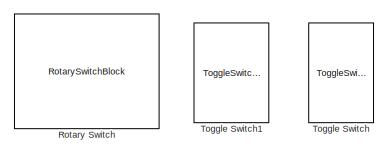
[diagram: root canvas - part 1/3, top right region]
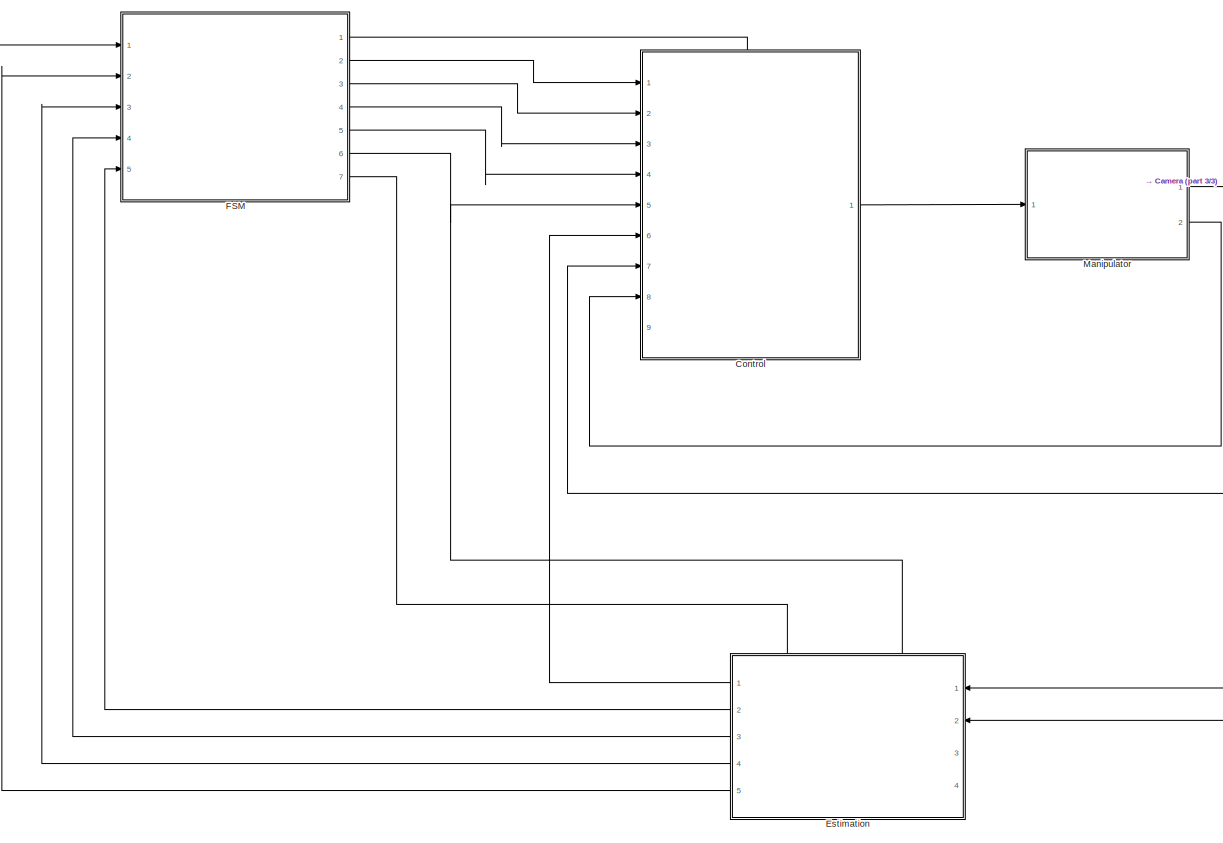
[diagram: root canvas - part 2/3, center side, full height]
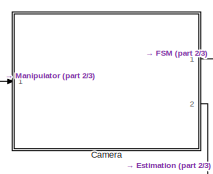
[diagram: root canvas - part 3/3, middle right region]
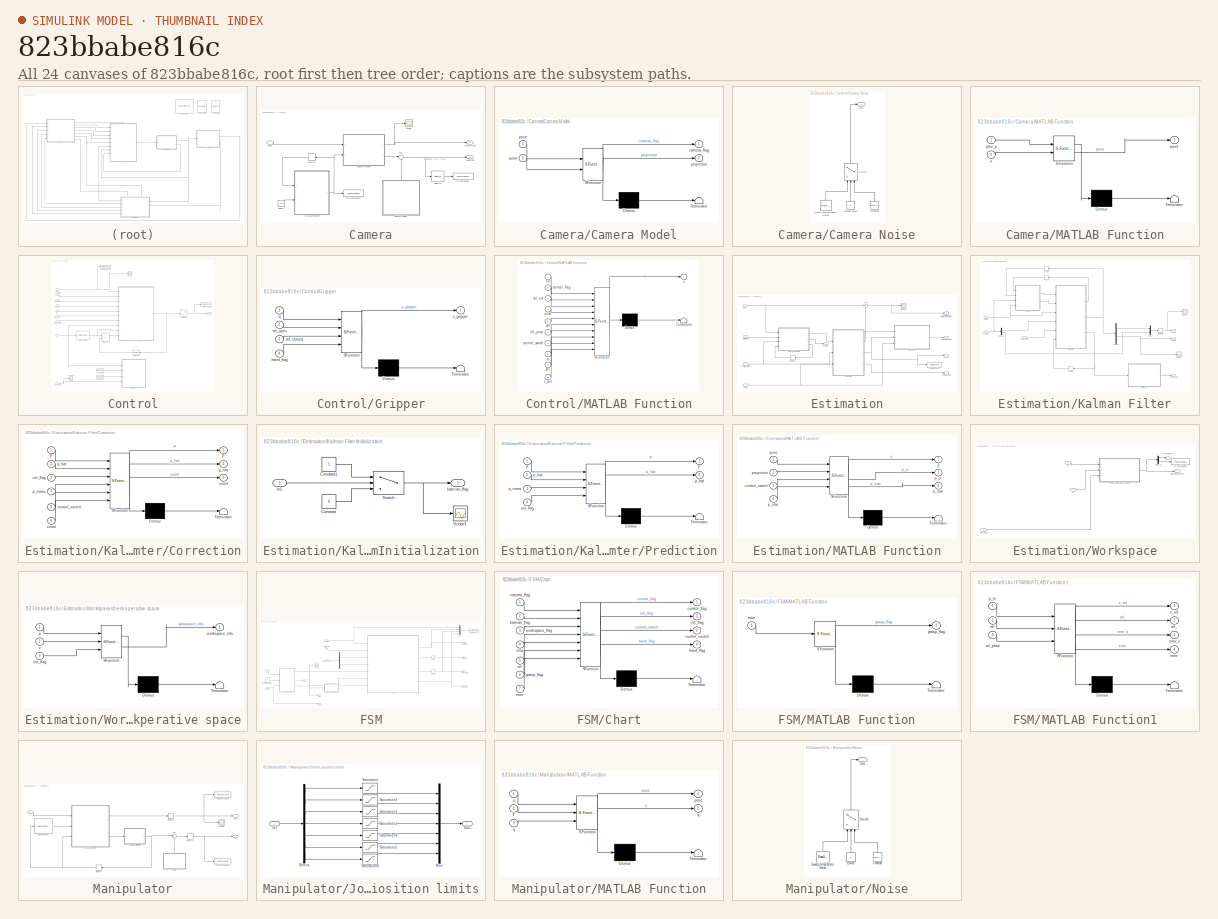
[diagram: thumbnail index - all 24 canvases of the model, root first then tree order]
MODEL slx_823bbabe816c
KIND model
CONFIG AbsTol = auto
CONFIG EnableMultiTasking = off
CONFIG FixedStep = auto
CONFIG MaxStep = auto
CONFIG MinStep = auto
CONFIG RelTol = 1e-3
CONFIG SampleTimeConstraint = Unconstrained
CONFIG SolverName = VariableStepAuto
CONFIG StartTime = 0.0
CONFIG StopTime = 10
WORKSPACE source: mxarray member
WORKSPACE SL_ROS_VariableLengthArrays_MaxSizes: object (value not decoded)
BLOCK [SubSystem] Camera
  Ports = [1, 2]
  RequestExecContextInheritance = off
BLOCK [SubSystem] Camera/Camera Model
  ErrorFcn = Stateflow.Translate.translate
  PermitHierarchicalResolution = ExplicitOnly
  Ports = [2, 2]
  RequestExecContextInheritance = off
  SFBlockType = MATLAB Function
  TreatAsAtomicUnit = on
BLOCK [Demux] Camera/Camera Model/ Demux 
  Outputs = 1
  Ports = [1, 1]
BLOCK [S-Function] Camera/Camera Model/ SFunction 
  EnableBusSupport = on
  FunctionName = sf_sfun
  Parameters = O,R_cam,camera_offset,f,l1,l2,plane_x,plane_y
  PortCounts = [2 3]
  Ports = [2, 3]
  SFcnIsStateOwnerBlock = off
  SFunctionDeploymentMode = off
  Tag = Stateflow S-Function 2
BLOCK [Terminator] Camera/Camera Model/ Terminator 
BLOCK [Outport] Camera/Camera Model/camera_flag
BLOCK [Inport] Camera/Camera Model/point
  Port = 2
BLOCK [Inport] Camera/Camera Model/pose
BLOCK [Outport] Camera/Camera Model/projection
  Port = 2
BLOCK [SubSystem] Camera/Camera Noise
  NameLocation = right
  Ports = [0, 1]
  RequestExecContextInheritance = off
BLOCK [Reference] Camera/Camera Noise/Band-Limited White Noise  REF=simulink/Sources/Band-Limited
White Noise
  NameLocation = right
  Ports = [0, 1]
  SourceBlock = simulink/Sources/Band-Limited\nWhite Noise
  SourceProductBaseCode = SL
  SourceType = Band-Limited White Noise.
BLOCK [Constant] Camera/Camera Noise/Constant
  NameLocation = right
  Value = zeros(1,12)
BLOCK [Outport] Camera/Camera Noise/Out1
BLOCK [Switch] Camera/Camera Noise/Switch
  Criteria = u2 > Threshold
  InputSameDT = off
  NameLocation = right
  SaturateOnIntegerOverflow = off
BLOCK [Constant] Camera/Camera Noise/camera noise
  NameLocation = right
  Value = 0
BLOCK [SubSystem] Camera/MATLAB Function
  ErrorFcn = Stateflow.Translate.translate
  PermitHierarchicalResolution = ExplicitOnly
  Ports = [2, 1]
  RequestExecContextInheritance = off
  SFBlockType = MATLAB Function
  SystemSampleTime = dT
  TreatAsAtomicUnit = on
BLOCK [Demux] Camera/MATLAB Function/ Demux 
  Outputs = 1
  Ports = [1, 1]
BLOCK [S-Function] Camera/MATLAB Function/ SFunction 
  EnableBusSupport = on
  FunctionName = sf_sfun
  Parameters = dT
  PortCounts = [2 2]
  Ports = [2, 2]
  SFcnIsStateOwnerBlock = off
  SFunctionDeploymentMode = off
  Tag = Stateflow S-Function 4
BLOCK [Terminator] Camera/MATLAB Function/ Terminator 
BLOCK [Outport] Camera/MATLAB Function/point
BLOCK [Inport] Camera/MATLAB Function/prev_p
BLOCK [Inport] Camera/MATLAB Function/v
  Port = 2
BLOCK [Memory] Camera/Memory
  InitialCondition = [p; o]
  NameLocation = top
BLOCK [Scope] Camera/Scope
  Floating = off
  NumInputPorts = 1
  Ports = [1]
  ScopeSpecificationString = Simulink.scopes.TimeScopeBlockCfg('CurrentConfiguration', extmgr.ConfigurationSet(extmgr.Configuration('Core','General UI',true),extmgr.Configuration('Core','Source UI',true),extmgr.Configuration('Sources','WiredSimulink',true),extmgr.Configuration('Visuals','Time Domain',true,'SerializedDisplays',{struct('MinYLimReal','-0.125','MaxYLimReal','1.125','YLabelReal','','MinYLimMag','0.00000','MaxYLimM...<+1359ch>
BLOCK [Selector] Camera/Selector
  IndexOptions = Index vector (dialog)
  Indices = [1 2 4 5 7 8 10 11]
  InputPortWidth = 12
  OutputSizes = 1
  Ports = [1, 1]
BLOCK [Sum] Camera/Sum
  Inputs = |++
  Ports = [2, 1]
BLOCK [ToWorkspace] Camera/To Workspace
  FixptAsFi = on
  MaxDataPoints = inf
  Ports = [1]
  SampleTime = st
  VariableName = proj
BLOCK [ToWorkspace] Camera/To Workspace2
  FixptAsFi = on
  MaxDataPoints = inf
  Ports = [1]
  SampleTime = st
  VariableName = p
BLOCK [Constant] Camera/Velocity
  SampleTime = dT
  Value = -0.04
BLOCK [Outport] Camera/camera flag
BLOCK [Inport] Camera/pose
BLOCK [Outport] Camera/projection
  Port = 2
BLOCK [SubSystem] Control
  PortSchema = {"entries":[{"content":{"sides":[{"content":{"connectorIds":["In1","In2","In3","In4","In5","In6","In7","In8"]},"type":"ConnectorPlacement.EquallySpacedRectSide","uuid":"af17fae2-36f6-4efd-b4ba-fb8d1f73429e"},{"content":{"connectorIds":["Out1"],"side":"RIGHT"},"type":"ConnectorPlacement.EquallySpacedRectSide","uuid":"2b8fdab6-bdef-4319-b746-176742d42689"},{"content":{"connectorIds":["In9"],"side":"...<+431ch>
  Ports = [9, 1]
  RequestExecContextInheritance = off
BLOCK [Constant] Control/Constant
  Commented = on
  Value = [0.02; 0.02]
BLOCK [Constant] Control/Constant1
  Commented = on
  Value = [0.05; 0.05]
BLOCK [Reference] Control/Get Jacobian  REF=robotmaniplib/Get Jacobian
  Ports = [1, 1]
  SourceBlock = robotmaniplib/Get Jacobian
  SourceProductBaseCode = RO
  SourceType = Get Jacobian
BLOCK [SubSystem] Control/Gripper
  Commented = on
  ErrorFcn = Stateflow.Translate.translate
  PermitHierarchicalResolution = ExplicitOnly
  Ports = [4, 1]
  RequestExecContextInheritance = off
  SFBlockType = MATLAB Function
  SystemSampleTime = dT
  TreatAsAtomicUnit = on
BLOCK [Demux] Control/Gripper/ Demux 
  Outputs = 1
  Ports = [1, 1]
BLOCK [S-Function] Control/Gripper/ SFunction 
  EnableBusSupport = on
  FunctionName = sf_sfun
  Parameters = Kg
  PortCounts = [4 2]
  Ports = [4, 2]
  SFcnIsStateOwnerBlock = off
  SFunctionDeploymentMode = off
  Tag = Stateflow S-Function 8
BLOCK [Terminator] Control/Gripper/ Terminator 
BLOCK [Inport] Control/Gripper/hand_flag
  Port = 4
BLOCK [Inport] Control/Gripper/q
BLOCK [Inport] Control/Gripper/ref_closed
  Port = 3
BLOCK [Inport] Control/Gripper/ref_open
  Port = 2
BLOCK [Outport] Control/Gripper/u_gripper
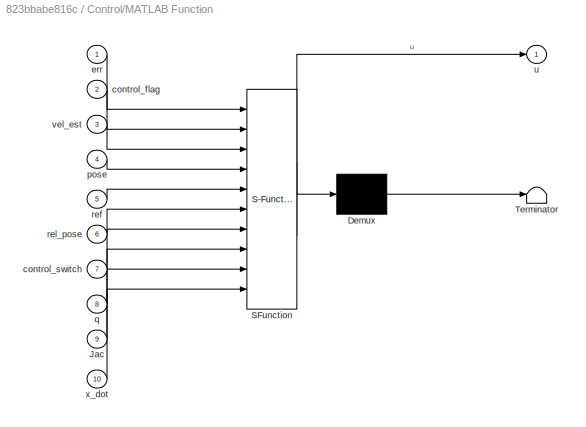
BLOCK [SubSystem] Control/MATLAB Function
  ErrorFcn = Stateflow.Translate.translate
  PermitHierarchicalResolution = ExplicitOnly
  Ports = [10, 1]
  RequestExecContextInheritance = off
  SFBlockType = MATLAB Function
  SystemSampleTime = dT
  TreatAsAtomicUnit = on
BLOCK [Demux] Control/MATLAB Function/ Demux 
  Outputs = 1
  Ports = [1, 1]
BLOCK [S-Function] Control/MATLAB Function/ SFunction 
  EnableBusSupport = on
  FunctionName = sf_sfun
  Parameters = Kd,Kh,Kp,q_init
  PortCounts = [10 2]
  Ports = [10, 2]
  SFcnIsStateOwnerBlock = off
  SFunctionDeploymentMode = off
  Tag = Stateflow S-Function 1
BLOCK [Terminator] Control/MATLAB Function/ Terminator 
BLOCK [Inport] Control/MATLAB Function/Jac
  Port = 9
BLOCK [Inport] Control/MATLAB Function/control_flag
  Port = 2
BLOCK [Inport] Control/MATLAB Function/control_switch
  Port = 7
BLOCK [Inport] Control/MATLAB Function/err
BLOCK [Inport] Control/MATLAB Function/pose
  Port = 4
BLOCK [Inport] Control/MATLAB Function/q
  Port = 8
BLOCK [Inport] Control/MATLAB Function/ref
  Port = 5
BLOCK [Inport] Control/MATLAB Function/rel_pose
  Port = 6
BLOCK [Outport] Control/MATLAB Function/u
BLOCK [Inport] Control/MATLAB Function/vel_est
  Port = 3
BLOCK [Inport] Control/MATLAB Function/x_dot
  Port = 10
BLOCK [Memory] Control/Memory1
  InitialCondition = zeros(7,1)
  NameLocation = top
BLOCK [Product] Control/Product
  Multiplication = Matrix(*)
  Ports = [2, 1]
BLOCK [Saturate] Control/Saturation
  LowerLimit = -2.5
  UpperLimit = 2.5
BLOCK [Scope] Control/Scope
  Floating = off
  NumInputPorts = 1
  Ports = [1]
  ScopeSpecificationString = Simulink.scopes.TimeScopeBlockCfg('CurrentConfiguration', extmgr.ConfigurationSet(extmgr.Configuration('Core','General UI',true),extmgr.Configuration('Core','Source UI',true),extmgr.Configuration('Sources','WiredSimulink',true,'DataLoggingVariableName','ScopeData1'),extmgr.Configuration('Visuals','Time Domain',true,'SerializedDisplays',{struct('MinYLimReal','-7.16225','MaxYLimReal','1.62836','YLab...<+1625ch>
BLOCK [Scope] Control/Scope1
  Commented = on
  Floating = off
  NumInputPorts = 1
  Ports = [1]
  ScopeSpecificationString = Simulink.scopes.TimeScopeBlockCfg('CurrentConfiguration', extmgr.ConfigurationSet(extmgr.Configuration('Core','General UI',true),extmgr.Configuration('Core','Source UI',true),extmgr.Configuration('Sources','WiredSimulink',true,'DataLoggingVariableName','ScopeData1'),extmgr.Configuration('Visuals','Time Domain',true,'SerializedDisplays',{struct('MinYLimReal','-0.125','MaxYLimReal','1.125','YLabelRe...<+1393ch>
BLOCK [ToWorkspace] Control/To Workspace
  FixptAsFi = on
  MaxDataPoints = inf
  Ports = [1]
  SampleTime = st
  VariableName = error
BLOCK [ToWorkspace] Control/To Workspace1
  FixptAsFi = on
  MaxDataPoints = inf
  Ports = [1]
  SampleTime = st
  VariableName = control
BLOCK [Inport] Control/control_flag
  Port = 9
BLOCK [Inport] Control/control_switch
  Port = 5
BLOCK [Inport] Control/error
BLOCK [Inport] Control/hand_flag
  Port = 2
BLOCK [Inport] Control/pose
  Port = 7
BLOCK [Inport] Control/q
  Port = 8
BLOCK [Inport] Control/ref
  Port = 4
BLOCK [Inport] Control/rel_pose
  Port = 3
BLOCK [Outport] Control/u
BLOCK [Inport] Control/vel est
  Port = 6
BLOCK [SubSystem] Estimation
  NameLocation = top
  PortSchema = {"entries":[{"content":{"sides":[{"content":{"connectorIds":["In1","In2"]},"type":"ConnectorPlacement.EquallySpacedRectSide","uuid":"a08c32dc-abe6-4f2b-ae77-c4d2f876d1ca"},{"content":{"connectorIds":["Out1","Out2","Out3","Out4","Out5"],"side":"RIGHT"},"type":"ConnectorPlacement.EquallySpacedRectSide","uuid":"a9594212-1ad7-4004-b7e9-4ae8430051bc"},{"content":{"connectorIds":["In3","In4"],"side":"TO...<+429ch>
  Ports = [4, 5]
  RequestExecContextInheritance = off
BLOCK [SubSystem] Estimation/Kalman Filter
  Ports = [3, 3]
  RequestExecContextInheritance = off
BLOCK [SubSystem] Estimation/Kalman Filter/Correction
  ErrorFcn = Stateflow.Translate.translate
  PermitHierarchicalResolution = ExplicitOnly
  Ports = [6, 3]
  RequestExecContextInheritance = off
  SFBlockType = MATLAB Function
  SystemSampleTime = DT
  TreatAsAtomicUnit = on
BLOCK [Demux] Estimation/Kalman Filter/Correction/ Demux 
  Outputs = 1
  Ports = [1, 1]
BLOCK [S-Function] Estimation/Kalman Filter/Correction/ SFunction 
  EnableBusSupport = on
  FunctionName = sf_sfun
  Parameters = P0,R
  PortCounts = [6 4]
  Ports = [6, 4]
  SFcnIsStateOwnerBlock = off
  SFunctionDeploymentMode = off
  Tag = Stateflow S-Function 10
BLOCK [Terminator] Estimation/Kalman Filter/Correction/ Terminator 
BLOCK [Outport] Estimation/Kalman Filter/Correction/P
BLOCK [Inport] Estimation/Kalman Filter/Correction/P 
BLOCK [Inport] Estimation/Kalman Filter/Correction/control_switch
  Port = 5
BLOCK [Outport] Estimation/Kalman Filter/Correction/count
  Port = 3
BLOCK [Inport] Estimation/Kalman Filter/Correction/count 
  Port = 6
BLOCK [Inport] Estimation/Kalman Filter/Correction/init_flag
  Port = 3
BLOCK [Outport] Estimation/Kalman Filter/Correction/p_hat
  Port = 2
BLOCK [Inport] Estimation/Kalman Filter/Correction/p_hat 
  Port = 2
BLOCK [Inport] Estimation/Kalman Filter/Correction/p_meas
  Port = 4
BLOCK [Demux] Estimation/Kalman Filter/Demux
  Outputs = 2
  Ports = [1, 2]
BLOCK [Demux] Estimation/Kalman Filter/Demux1
  Outputs = 2
  Ports = [1, 2]
BLOCK [SubSystem] Estimation/Kalman Filter/Initialization
  Ports = [1, 1]
  RequestExecContextInheritance = off
BLOCK [Constant] Estimation/Kalman Filter/Initialization/Constant
  Value = 0
BLOCK [Constant] Estimation/Kalman Filter/Initialization/Constant1
BLOCK [Inport] Estimation/Kalman Filter/Initialization/In1
BLOCK [Scope] Estimation/Kalman Filter/Initialization/Scope1
  Floating = off
  NumInputPorts = 1
  Ports = [1]
  ScopeSpecificationString = Simulink.scopes.TimeScopeBlockCfg('CurrentConfiguration', extmgr.ConfigurationSet(extmgr.Configuration('Core','General UI',true),extmgr.Configuration('Core','Source UI',true),extmgr.Configuration('Sources','WiredSimulink',true,'DataLoggingVariableName','ScopeData1'),extmgr.Configuration('Visuals','Time Domain',true,'SerializedDisplays',{struct('MinYLimReal','-0.125','MaxYLimReal','1.125','YLabelRe...<+1382ch>
BLOCK [Switch] Estimation/Kalman Filter/Initialization/Switch
  Criteria = u2 > Threshold
  InputSameDT = off
  SaturateOnIntegerOverflow = off
  Threshold = 2/DT
BLOCK [Outport] Estimation/Kalman Filter/Initialization/kalman_flag
BLOCK [Memory] Estimation/Kalman Filter/Memory
  InitialCondition = zeros(6,1)
BLOCK [Mux] Estimation/Kalman Filter/Mux
  DisplayOption = bar
  Inputs = 2
  Ports = [2, 1]
BLOCK [Memory] Estimation/Kalman Filter/P
  InitialCondition = P0
  NameLocation = top
BLOCK [SubSystem] Estimation/Kalman Filter/Prediction
  ErrorFcn = Stateflow.Translate.translate
  PermitHierarchicalResolution = ExplicitOnly
  Ports = [4, 2]
  RequestExecContextInheritance = off
  SFBlockType = MATLAB Function
  SystemSampleTime = DT
  TreatAsAtomicUnit = on
BLOCK [Demux] Estimation/Kalman Filter/Prediction/ Demux 
  Outputs = 1
  Ports = [1, 1]
BLOCK [S-Function] Estimation/Kalman Filter/Prediction/ SFunction 
  EnableBusSupport = on
  FunctionName = sf_sfun
  Parameters = DT,Q
  PortCounts = [4 3]
  Ports = [4, 3]
  SFcnIsStateOwnerBlock = off
  SFunctionDeploymentMode = off
  Tag = Stateflow S-Function 11
BLOCK [Terminator] Estimation/Kalman Filter/Prediction/ Terminator 
BLOCK [Outport] Estimation/Kalman Filter/Prediction/P
BLOCK [Inport] Estimation/Kalman Filter/Prediction/P 
BLOCK [Inport] Estimation/Kalman Filter/Prediction/init_flag
  Port = 4
BLOCK [Outport] Estimation/Kalman Filter/Prediction/p_hat
  Port = 2
BLOCK [Inport] Estimation/Kalman Filter/Prediction/p_hat 
  Port = 2
BLOCK [Inport] Estimation/Kalman Filter/Prediction/p_meas
  Port = 3
BLOCK [Scope] Estimation/Kalman Filter/Scope
  Floating = off
  NumInputPorts = 1
  Ports = [1]
  ScopeSpecificationString = Simulink.scopes.TimeScopeBlockCfg('CurrentConfiguration', extmgr.ConfigurationSet(extmgr.Configuration('Core','General UI',true),extmgr.Configuration('Core','Source UI',true),extmgr.Configuration('Sources','WiredSimulink',true,'DataLoggingVariableName','ScopeData1'),extmgr.Configuration('Visuals','Time Domain',true,'SerializedDisplays',{struct('MinYLimReal','-0.11646','MaxYLimReal','0.44818','YLab...<+1462ch>
BLOCK [Scope] Estimation/Kalman Filter/Scope1
  Floating = off
  NumInputPorts = 1
  Ports = [1]
  ScopeSpecificationString = Simulink.scopes.TimeScopeBlockCfg('CurrentConfiguration', extmgr.ConfigurationSet(extmgr.Configuration('Core','General UI',true),extmgr.Configuration('Core','Source UI',true),extmgr.Configuration('Sources','WiredSimulink',true,'DataLoggingVariableName','ScopeData1'),extmgr.Configuration('Visuals','Time Domain',true,'SerializedDisplays',{struct('MinYLimReal','-0.19375','MaxYLimReal','0.64375','YLab...<+1449ch>
BLOCK [Inport] Estimation/Kalman Filter/control_switch
  Port = 2
BLOCK [Memory] Estimation/Kalman Filter/count
  NameLocation = top
BLOCK [Inport] Estimation/Kalman Filter/init_flag
  Port = 3
BLOCK [Outport] Estimation/Kalman Filter/kalman_flag
  Port = 3
BLOCK [Outport] Estimation/Kalman Filter/p_est
BLOCK [Memory] Estimation/Kalman Filter/p_hat
  InitialCondition = zeros(6,1)
  NameLocation = top
BLOCK [Inport] Estimation/Kalman Filter/p_meas
BLOCK [Outport] Estimation/Kalman Filter/vel_est
  Port = 2
BLOCK [SubSystem] Estimation/MATLAB Function
  ErrorFcn = Stateflow.Translate.translate
  PermitHierarchicalResolution = ExplicitOnly
  Ports = [4, 3]
  RequestExecContextInheritance = off
  SFBlockType = MATLAB Function
  TreatAsAtomicUnit = on
BLOCK [Demux] Estimation/MATLAB Function/ Demux 
  Outputs = 1
  Ports = [1, 1]
BLOCK [S-Function] Estimation/MATLAB Function/ SFunction 
  EnableBusSupport = on
  FunctionName = sf_sfun
  Parameters = O,R_cam,camera_offset,f
  PortCounts = [4 4]
  Ports = [4, 4]
  SFcnIsStateOwnerBlock = off
  SFunctionDeploymentMode = off
  Tag = Stateflow S-Function 5
BLOCK [Terminator] Estimation/MATLAB Function/ Terminator 
BLOCK [Inport] Estimation/MATLAB Function/control_switch
  Port = 3
BLOCK [Outport] Estimation/MATLAB Function/p
BLOCK [Outport] Estimation/MATLAB Function/p_or
  Port = 2
BLOCK [Outport] Estimation/MATLAB Function/p_star
  Port = 3
BLOCK [Inport] Estimation/MATLAB Function/p_star 
  Port = 4
BLOCK [Inport] Estimation/MATLAB Function/pose
BLOCK [Inport] Estimation/MATLAB Function/projection
  Port = 2
BLOCK [Memory] Estimation/Memory1
  InitialCondition = zeros(6,1)
  NameLocation = top
BLOCK [Scope] Estimation/Scope1
  Floating = off
  NumInputPorts = 1
  Ports = [1]
  ScopeSpecificationString = Simulink.scopes.TimeScopeBlockCfg('CurrentConfiguration', extmgr.ConfigurationSet(extmgr.Configuration('Core','General UI',true),extmgr.Configuration('Core','Source UI',true),extmgr.Configuration('Sources','WiredSimulink',true,'DataLoggingVariableName','ScopeData2'),extmgr.Configuration('Visuals','Time Domain',true,'SerializedDisplays',{struct('MinYLimReal','-3.92699','MaxYLimReal','3.92699','YLab...<+1568ch>
BLOCK [Sum] Estimation/Sum
  Inputs = |+-
  Ports = [2, 1]
BLOCK [ToWorkspace] Estimation/To Workspace1
  FixptAsFi = on
  MaxDataPoints = inf
  Ports = [1]
  SampleTime = st
  VariableName = speed
BLOCK [SubSystem] Estimation/Workspace
  Ports = [3, 1]
  RequestExecContextInheritance = off
BLOCK [Demux] Estimation/Workspace/Demux
  Outputs = 2
  Ports = [1, 2]
BLOCK [Terminator] Estimation/Workspace/Terminator
BLOCK [ToWorkspace] Estimation/Workspace/To Workspace
  FixptAsFi = on
  MaxDataPoints = inf
  Ports = [1]
  SampleTime = st
  VariableName = remaining_time
BLOCK [SubSystem] Estimation/Workspace/check operative space
  ErrorFcn = Stateflow.Translate.translate
  PermitHierarchicalResolution = ExplicitOnly
  Ports = [3, 1]
  RequestExecContextInheritance = off
  SFBlockType = MATLAB Function
  SystemSampleTime = 1/2
  TreatAsAtomicUnit = on
BLOCK [Demux] Estimation/Workspace/check operative space/ Demux 
  Outputs = 1
  Ports = [1, 1]
BLOCK [S-Function] Estimation/Workspace/check operative space/ SFunction 
  EnableBusSupport = on
  FunctionName = sf_sfun
  Parameters = workspace_dim
  PortCounts = [3 2]
  Ports = [3, 2]
  SFcnIsStateOwnerBlock = off
  SFunctionDeploymentMode = off
  Tag = Stateflow S-Function 6
BLOCK [Terminator] Estimation/Workspace/check operative space/ Terminator 
BLOCK [Inport] Estimation/Workspace/check operative space/init_flag
  Port = 3
BLOCK [Inport] Estimation/Workspace/check operative space/p
BLOCK [Inport] Estimation/Workspace/check operative space/v
  Port = 2
BLOCK [Outport] Estimation/Workspace/check operative space/workspace_info
BLOCK [Inport] Estimation/Workspace/init_flag
  Port = 3
BLOCK [Inport] Estimation/Workspace/p
BLOCK [Inport] Estimation/Workspace/v
  Port = 2
BLOCK [Outport] Estimation/Workspace/workspace info
BLOCK [Outport] Estimation/camera pose relative to the object
  Port = 2
BLOCK [Inport] Estimation/control_switch
  Port = 3
BLOCK [Inport] Estimation/init_flag
  Port = 4
BLOCK [Outport] Estimation/kalman_flag
  Port = 3
BLOCK [Outport] Estimation/p_orient
  Port = 5
BLOCK [Inport] Estimation/pose
BLOCK [Inport] Estimation/projection
  Port = 2
BLOCK [Outport] Estimation/vel_est
BLOCK [Outport] Estimation/workspace info
  Port = 4
BLOCK [SubSystem] FSM
  Ports = [5, 7]
  RequestExecContextInheritance = off
BLOCK [Constant] FSM/Camera desired pose relative to the object
  SampleTime = -1
  Value = ref
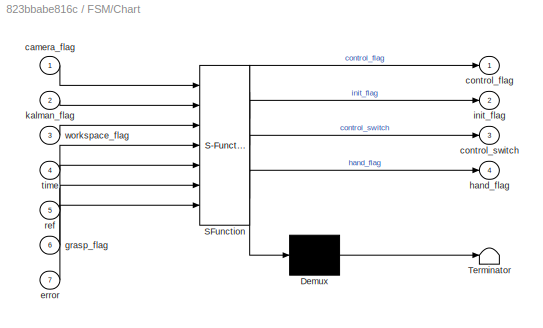
BLOCK [SubSystem] FSM/Chart
  ErrorFcn = Stateflow.Translate.translate
  PermitHierarchicalResolution = ExplicitOnly
  PortSchema = {"entries":[{"content":{"sides":[{"content":{"connectorIds":["In1","In2","In3","In4","In5","In7","In6"]},"type":"ConnectorPlacement.EquallySpacedRectSide","uuid":"36481a4d-886a-4e43-81c1-a35977eb8c82"},{"content":{"connectorIds":["Out1","Out2","Out3","Out4"],"side":"RIGHT"},"type":"ConnectorPlacement.EquallySpacedRectSide","uuid":"35110049-2785-4c15-b5c6-481c07ac5a1c"},{"content":{"connectorIds":[...<+441ch>
  Ports = [7, 4]
  RequestExecContextInheritance = off
  SFBlockType = Chart
  TreatAsAtomicUnit = on
BLOCK [Demux] FSM/Chart/ Demux 
  Outputs = 1
  Ports = [1, 1]
BLOCK [S-Function] FSM/Chart/ SFunction 
  EnableBusSupport = on
  FunctionName = sf_sfun
  PortCounts = [7 5]
  Ports = [7, 5]
  SFcnIsStateOwnerBlock = off
  SFunctionDeploymentMode = off
  Tag = Stateflow S-Function 7
BLOCK [Terminator] FSM/Chart/ Terminator 
BLOCK [Inport] FSM/Chart/camera_flag
BLOCK [Outport] FSM/Chart/control_flag
BLOCK [Outport] FSM/Chart/control_switch
  Port = 3
BLOCK [Inport] FSM/Chart/error
  Port = 7
BLOCK [Inport] FSM/Chart/grasp_flag
  Port = 6
BLOCK [Outport] FSM/Chart/hand_flag
  Port = 4
BLOCK [Outport] FSM/Chart/init_flag
  Port = 2
BLOCK [Inport] FSM/Chart/kalman_flag
  Port = 2
BLOCK [Inport] FSM/Chart/ref
  Port = 5
BLOCK [Inport] FSM/Chart/time
  Port = 4
BLOCK [Inport] FSM/Chart/workspace_flag
  Port = 3
BLOCK [Delay] FSM/Delay
  DelayLength = 1
  InputPortMap = u0
  Ports = [1, 1]
BLOCK [Delay] FSM/Delay1
  DelayLength = 1
  InputPortMap = u0
  Ports = [1, 1]
BLOCK [Demux] FSM/Demux
  Outputs = 2
  Ports = [1, 2]
BLOCK [SubSystem] FSM/MATLAB Function
  ErrorFcn = Stateflow.Translate.translate
  PermitHierarchicalResolution = ExplicitOnly
  Ports = [1, 1]
  RequestExecContextInheritance = off
  SFBlockType = MATLAB Function
  TreatAsAtomicUnit = on
BLOCK [Demux] FSM/MATLAB Function/ Demux 
  Outputs = 1
  Ports = [1, 1]
BLOCK [S-Function] FSM/MATLAB Function/ SFunction 
  EnableBusSupport = on
  FunctionName = sf_sfun
  Parameters = tolerance
  PortCounts = [1 2]
  Ports = [1, 2]
  SFcnIsStateOwnerBlock = off
  SFunctionDeploymentMode = off
  Tag = Stateflow S-Function 12
BLOCK [Terminator] FSM/MATLAB Function/ Terminator 
BLOCK [Inport] FSM/MATLAB Function/error
BLOCK [Outport] FSM/MATLAB Function/grasp_flag
BLOCK [SubSystem] FSM/MATLAB Function1
  ErrorFcn = Stateflow.Translate.translate
  PermitHierarchicalResolution = ExplicitOnly
  Ports = [3, 4]
  RequestExecContextInheritance = off
  SFBlockType = MATLAB Function
  TreatAsAtomicUnit = on
BLOCK [Demux] FSM/MATLAB Function1/ Demux 
  Outputs = 1
  Ports = [1, 1]
BLOCK [S-Function] FSM/MATLAB Function1/ SFunction 
  EnableBusSupport = on
  FunctionName = sf_sfun
  PortCounts = [3 5]
  Ports = [3, 5]
  SFcnIsStateOwnerBlock = off
  SFunctionDeploymentMode = off
  Tag = Stateflow S-Function 9
BLOCK [Terminator] FSM/MATLAB Function1/ Terminator 
BLOCK [Outport] FSM/MATLAB Function1/error
  Port = 4
BLOCK [Outport] FSM/MATLAB Function1/error_z
  Port = 3
BLOCK [Inport] FSM/MATLAB Function1/p_or
BLOCK [Inport] FSM/MATLAB Function1/ref
  Port = 2
BLOCK [Outport] FSM/MATLAB Function1/ref_
  Port = 2
BLOCK [Inport] FSM/MATLAB Function1/rel_pose
  Port = 3
BLOCK [Outport] FSM/MATLAB Function1/z_ref
BLOCK [Mux] FSM/Mux
  DisplayOption = bar
  Ports = [4, 1]
BLOCK [Scope] FSM/Scope
  Floating = off
  NumInputPorts = 1
  Ports = [1]
  ScopeSpecificationString = Simulink.scopes.TimeScopeBlockCfg('CurrentConfiguration', extmgr.ConfigurationSet(extmgr.Configuration('Core','General UI',true),extmgr.Configuration('Core','Source UI',true),extmgr.Configuration('Sources','WiredSimulink',true,'DataLoggingVariableName','ScopeData1'),extmgr.Configuration('Visuals','Time Domain',true,'SerializedDisplays',{struct('MinYLimReal','-0.8452','MaxYLimReal','0.53569','YLabe...<+1654ch>
BLOCK [ToWorkspace] FSM/To Workspace
  FixptAsFi = on
  MaxDataPoints = inf
  Ports = [1]
  SampleTime = st
  VariableName = states
BLOCK [Inport] FSM/camera flag
BLOCK [Outport] FSM/control_flag
BLOCK [Outport] FSM/control_switch
  Port = 6
BLOCK [Outport] FSM/error
  Port = 2
BLOCK [Outport] FSM/hand_flag
  Port = 3
BLOCK [Outport] FSM/init_flag
  Port = 7
BLOCK [Inport] FSM/kalman_flag
  Port = 4
BLOCK [Inport] FSM/p_orient
  Port = 2
BLOCK [Outport] FSM/ref
  Port = 5
BLOCK [Outport] FSM/rel_Pose
  Port = 4
BLOCK [Inport] FSM/rel_pose
  NameLocation = top
  Port = 5
BLOCK [Inport] FSM/workspace info
  Port = 3
BLOCK [SubSystem] Manipulator
  Ports = [1, 2]
  RequestExecContextInheritance = off
BLOCK [Reference] Manipulator/Get Transform  REF=robotmaniplib/Get Transform
  Ports = [1, 1]
  SourceBlock = robotmaniplib/Get Transform
  SourceProductBaseCode = RO
  SourceType = Get Transform
BLOCK [SubSystem] Manipulator/Joints position limits
  Ports = [1, 1]
  RequestExecContextInheritance = off
BLOCK [Demux] Manipulator/Joints position limits/Demux
  Outputs = 7
  Ports = [1, 7]
BLOCK [Inport] Manipulator/Joints position limits/In1
BLOCK [Mux] Manipulator/Joints position limits/Mux
  DisplayOption = bar
  Inputs = 7
  Ports = [7, 1]
BLOCK [Outport] Manipulator/Joints position limits/Out1
BLOCK [Saturate] Manipulator/Joints position limits/Saturation
  LowerLimit = -166*pi/180
  UpperLimit = 166*pi/180
BLOCK [Saturate] Manipulator/Joints position limits/Saturation1
  LowerLimit = -101*pi/180
  UpperLimit = 101*pi/180
BLOCK [Saturate] Manipulator/Joints position limits/Saturation2
  LowerLimit = -166*pi/180
  UpperLimit = 166*pi/180
BLOCK [Saturate] Manipulator/Joints position limits/Saturation3
  LowerLimit = -176*pi/180
  UpperLimit = -4*pi/180
BLOCK [Saturate] Manipulator/Joints position limits/Saturation4
  LowerLimit = -166*pi/180
  UpperLimit = 166*pi/180
BLOCK [Saturate] Manipulator/Joints position limits/Saturation5
  LowerLimit = -pi/180
  UpperLimit = 215*pi/180
BLOCK [Saturate] Manipulator/Joints position limits/Saturation6
  LowerLimit = -166*pi/180
  UpperLimit = 166*pi/180
BLOCK [SubSystem] Manipulator/MATLAB Function
  ErrorFcn = Stateflow.Translate.translate
  PermitHierarchicalResolution = ExplicitOnly
  Ports = [3, 2]
  RequestExecContextInheritance = off
  SFBlockType = MATLAB Function
  SystemSampleTime = dT
  TreatAsAtomicUnit = on
BLOCK [Demux] Manipulator/MATLAB Function/ Demux 
  Outputs = 1
  Ports = [1, 1]
BLOCK [S-Function] Manipulator/MATLAB Function/ SFunction 
  EnableBusSupport = on
  FunctionName = sf_sfun
  Parameters = O,dT
  PortCounts = [3 3]
  Ports = [3, 3]
  SFcnIsStateOwnerBlock = off
  SFunctionDeploymentMode = off
  Tag = Stateflow S-Function 3
BLOCK [Terminator] Manipulator/MATLAB Function/ Terminator 
BLOCK [Inport] Manipulator/MATLAB Function/T
  Port = 2
BLOCK [Outport] Manipulator/MATLAB Function/pose
BLOCK [Outport] Manipulator/MATLAB Function/q
  Port = 2
BLOCK [Inport] Manipulator/MATLAB Function/q 
  Port = 3
BLOCK [Inport] Manipulator/MATLAB Function/u
BLOCK [Memory] Manipulator/Memory
  InitialCondition = q_init
  NameLocation = top
BLOCK [Memory] Manipulator/Memory1
  InitialCondition = init_pose
BLOCK [Memory] Manipulator/Memory2
  InitialCondition = q_init
BLOCK [SubSystem] Manipulator/Noise
  NameLocation = right
  Ports = [0, 1]
  RequestExecContextInheritance = off
BLOCK [Reference] Manipulator/Noise/Band-Limited White Noise  REF=simulink/Sources/Band-Limited
White Noise
  NameLocation = right
  Ports = [0, 1]
  SourceBlock = simulink/Sources/Band-Limited\nWhite Noise
  SourceProductBaseCode = SL
  SourceType = Band-Limited White Noise.
BLOCK [Constant] Manipulator/Noise/Constant
  NameLocation = right
  Value = zeros(1,7)
BLOCK [Outport] Manipulator/Noise/Out1
BLOCK [Switch] Manipulator/Noise/Switch
  Criteria = u2 > Threshold
  InputSameDT = off
  NameLocation = right
  SaturateOnIntegerOverflow = off
BLOCK [Constant] Manipulator/Noise/q noise
  NameLocation = right
  Value = 0
BLOCK [Scope] Manipulator/Scope
  Floating = off
  NumInputPorts = 1
  Ports = [1]
  ScopeSpecificationString = Simulink.scopes.TimeScopeBlockCfg('CurrentConfiguration', extmgr.ConfigurationSet(extmgr.Configuration('Core','General UI',true),extmgr.Configuration('Core','Source UI',true),extmgr.Configuration('Sources','WiredSimulink',true,'DataLoggingVariableName','ScopeData3'),extmgr.Configuration('Visuals','Time Domain',true,'SerializedDisplays',{struct('MinYLimReal','-3.92696','MaxYLimReal','3.92699','YLab...<+1634ch>
BLOCK [Sum] Manipulator/Sum
  Inputs = |++
  Ports = [2, 1]
BLOCK [ToWorkspace] Manipulator/To Workspace
  FixptAsFi = on
  MaxDataPoints = inf
  Ports = [1]
  SampleTime = st
  VariableName = pose
BLOCK [ToWorkspace] Manipulator/To Workspace1
  FixptAsFi = on
  MaxDataPoints = inf
  Ports = [1]
  SampleTime = st
  VariableName = q
BLOCK [Outport] Manipulator/pose
BLOCK [Outport] Manipulator/q
  Port = 2
BLOCK [Inport] Manipulator/u
BLOCK [RotarySwitchBlock] Rotary Switch
  LabelPosition = Bottom
BLOCK [ToggleSwitchBlock] Toggle Switch
  LabelPosition = Bottom
BLOCK [ToggleSwitchBlock] Toggle Switch1
  LabelPosition = Bottom
ANNOTATION Camera: projection = [x1 y1 Zc1]
NET Camera/Camera Model:1 -> Camera/Scope:1, Camera/camera flag:1
LINE Camera/Camera Model:2 -> Camera/Sum:1
LINE Camera/Camera Noise/Band-Limited White Noise:1 -> Camera/Camera Noise/Switch:1
LINE Camera/Camera Noise/Constant:1 -> Camera/Camera Noise/Switch:3
LINE Camera/Camera Noise/Switch:1 -> Camera/Camera Noise/Out1:1
LINE Camera/Camera Noise/camera noise:1 -> Camera/Camera Noise/Switch:2
LINE Camera/Camera Noise:1 -> Camera/Sum:2
NET Camera/MATLAB Function:1 -> Camera/Camera Model:2, Camera/Memory:1, Camera/To Workspace2:1
LINE Camera/Memory:1 -> Camera/MATLAB Function:1
LINE Camera/Selector:1 -> Camera/To Workspace:1
NET Camera/Sum:1 -> Camera/Selector:1, Camera/projection:1
LINE Camera/Velocity:1 -> Camera/MATLAB Function:2
LINE Camera/pose:1 -> Camera/Camera Model:1
LINE Camera:1 -> FSM:1
LINE Camera:2 -> Estimation:2
LINE Control/Constant1:1 -> Control/Gripper:2
LINE Control/Constant:1 -> Control/Gripper:3
NET Control/Get Jacobian:1 -> Control/MATLAB Function:9, Control/Product:1
NET Control/MATLAB Function:1 -> Control/Memory1:1, Control/Saturation:1
LINE Control/Memory1:1 -> Control/Product:2
LINE Control/Product:1 -> Control/MATLAB Function:10
NET Control/Saturation:1 -> Control/To Workspace1:1, Control/u:1
LINE Control/control_flag:1 -> Control/MATLAB Function:2
LINE Control/control_switch:1 -> Control/MATLAB Function:7
NET Control/error:1 -> Control/MATLAB Function:1, Control/Scope:1, Control/To Workspace:1
NET Control/hand_flag:1 -> Control/Gripper:4, Control/Scope1:1
LINE Control/pose:1 -> Control/MATLAB Function:4
NET Control/q:1 -> Control/Get Jacobian:1, Control/Gripper:1, Control/MATLAB Function:8
LINE Control/ref:1 -> Control/MATLAB Function:5
LINE Control/rel_pose:1 -> Control/MATLAB Function:6
LINE Control/vel est:1 -> Control/MATLAB Function:3
LINE Control:1 -> Manipulator:1
LINE Estimation/Kalman Filter/Correction:1 -> Estimation/Kalman Filter/P:1
NET Estimation/Kalman Filter/Correction:2 -> Estimation/Kalman Filter/Demux:1, Estimation/Kalman Filter/p_hat:1
NET Estimation/Kalman Filter/Correction:3 -> Estimation/Kalman Filter/Initialization:1, Estimation/Kalman Filter/count:1
LINE Estimation/Kalman Filter/Demux1:1 -> Estimation/Kalman Filter/Correction:4
LINE Estimation/Kalman Filter/Demux1:2 -> Estimation/Kalman Filter/Mux:2
LINE Estimation/Kalman Filter/Demux:1 -> Estimation/Kalman Filter/Mux:1
NET Estimation/Kalman Filter/Demux:2 -> Estimation/Kalman Filter/Scope:1, Estimation/Kalman Filter/vel_est:1
LINE Estimation/Kalman Filter/Initialization/Constant1:1 -> Estimation/Kalman Filter/Initialization/Switch:1
LINE Estimation/Kalman Filter/Initialization/Constant:1 -> Estimation/Kalman Filter/Initialization/Switch:3
LINE Estimation/Kalman Filter/Initialization/In1:1 -> Estimation/Kalman Filter/Initialization/Switch:2
NET Estimation/Kalman Filter/Initialization/Switch:1 -> Estimation/Kalman Filter/Initialization/Scope1:1, Estimation/Kalman Filter/Initialization/kalman_flag:1
LINE Estimation/Kalman Filter/Initialization:1 -> Estimation/Kalman Filter/kalman_flag:1
NET Estimation/Kalman Filter/Memory:1 -> Estimation/Kalman Filter/Scope1:1, Estimation/Kalman Filter/p_est:1
LINE Estimation/Kalman Filter/Mux:1 -> Estimation/Kalman Filter/Memory:1
LINE Estimation/Kalman Filter/P:1 -> Estimation/Kalman Filter/Prediction:1
LINE Estimation/Kalman Filter/Prediction:1 -> Estimation/Kalman Filter/Correction:1
LINE Estimation/Kalman Filter/Prediction:2 -> Estimation/Kalman Filter/Correction:2
LINE Estimation/Kalman Filter/control_switch:1 -> Estimation/Kalman Filter/Correction:5
LINE Estimation/Kalman Filter/count:1 -> Estimation/Kalman Filter/Correction:6
NET Estimation/Kalman Filter/init_flag:1 -> Estimation/Kalman Filter/Correction:3, Estimation/Kalman Filter/Prediction:4
LINE Estimation/Kalman Filter/p_hat:1 -> Estimation/Kalman Filter/Prediction:2
NET Estimation/Kalman Filter/p_meas:1 -> Estimation/Kalman Filter/Demux1:1, Estimation/Kalman Filter/Prediction:3
NET Estimation/Kalman Filter:1 -> Estimation/Sum:2, Estimation/Workspace:1
NET Estimation/Kalman Filter:2 -> Estimation/To Workspace1:1, Estimation/Workspace:2, Estimation/vel_est:1
LINE Estimation/Kalman Filter:3 -> Estimation/kalman_flag:1
LINE Estimation/MATLAB Function:1 -> Estimation/Kalman Filter:1
LINE Estimation/MATLAB Function:2 -> Estimation/p_orient:1
LINE Estimation/MATLAB Function:3 -> Estimation/Memory1:1
LINE Estimation/Memory1:1 -> Estimation/MATLAB Function:4
NET Estimation/Sum:1 -> Estimation/Scope1:1, Estimation/camera pose relative to the object:1
LINE Estimation/Workspace/Demux:1 -> Estimation/Workspace/Terminator:1
LINE Estimation/Workspace/Demux:2 -> Estimation/Workspace/To Workspace:1
NET Estimation/Workspace/check operative space:1 -> Estimation/Workspace/Demux:1, Estimation/Workspace/workspace info:1
LINE Estimation/Workspace/init_flag:1 -> Estimation/Workspace/check operative space:3
LINE Estimation/Workspace/p:1 -> Estimation/Workspace/check operative space:1
LINE Estimation/Workspace/v:1 -> Estimation/Workspace/check operative space:2
LINE Estimation/Workspace:1 -> Estimation/workspace info:1
NET Estimation/control_switch:1 -> Estimation/Kalman Filter:2, Estimation/MATLAB Function:3
NET Estimation/init_flag:1 -> Estimation/Kalman Filter:3, Estimation/Workspace:3
NET Estimation/pose:1 -> Estimation/MATLAB Function:1, Estimation/Sum:1
LINE Estimation/projection:1 -> Estimation/MATLAB Function:2
LINE Estimation:1 -> Control:6
LINE Estimation:2 -> FSM:5
LINE Estimation:3 -> FSM:4
LINE Estimation:4 -> FSM:3
LINE Estimation:5 -> FSM:2
LINE FSM/Camera desired pose relative to the object:1 -> FSM/MATLAB Function1:2
NET FSM/Chart:1 -> FSM/Mux:2, FSM/control_flag:1
LINE FSM/Chart:2 -> FSM/Delay:1
LINE FSM/Chart:3 -> FSM/Delay1:1
NET FSM/Chart:4 -> FSM/Mux:4, FSM/hand_flag:1
NET FSM/Delay1:1 -> FSM/Mux:3, FSM/control_switch:1
LINE FSM/Delay:1 -> FSM/init_flag:1
LINE FSM/Demux:1 -> FSM/Chart:3
LINE FSM/Demux:2 -> FSM/Chart:4
LINE FSM/MATLAB Function1:1 -> FSM/Chart:5
LINE FSM/MATLAB Function1:2 -> FSM/ref:1
NET FSM/MATLAB Function1:4 -> FSM/Chart:7, FSM/MATLAB Function:1, FSM/Scope:1, FSM/error:1
LINE FSM/MATLAB Function:1 -> FSM/Chart:6
LINE FSM/Mux:1 -> FSM/To Workspace:1
NET FSM/camera flag:1 -> FSM/Chart:1, FSM/Mux:1
LINE FSM/kalman_flag:1 -> FSM/Chart:2
LINE FSM/p_orient:1 -> FSM/MATLAB Function1:1
NET FSM/rel_pose:1 -> FSM/MATLAB Function1:3, FSM/rel_Pose:1
LINE FSM/workspace info:1 -> FSM/Demux:1
LINE FSM:1 -> Control:9
LINE FSM:2 -> Control:1
LINE FSM:3 -> Control:2
LINE FSM:4 -> Control:3
LINE FSM:5 -> Control:4
NET FSM:6 -> Control:5, Estimation:3
LINE FSM:7 -> Estimation:4
LINE Manipulator/Get Transform:1 -> Manipulator/MATLAB Function:2
LINE Manipulator/Joints position limits/Demux:1 -> Manipulator/Joints position limits/Saturation:1
LINE Manipulator/Joints position limits/Demux:2 -> Manipulator/Joints position limits/Saturation1:1
LINE Manipulator/Joints position limits/Demux:3 -> Manipulator/Joints position limits/Saturation2:1
LINE Manipulator/Joints position limits/Demux:4 -> Manipulator/Joints position limits/Saturation3:1
LINE Manipulator/Joints position limits/Demux:5 -> Manipulator/Joints position limits/Saturation4:1
LINE Manipulator/Joints position limits/Demux:6 -> Manipulator/Joints position limits/Saturation5:1
LINE Manipulator/Joints position limits/Demux:7 -> Manipulator/Joints position limits/Saturation6:1
LINE Manipulator/Joints position limits/In1:1 -> Manipulator/Joints position limits/Demux:1
LINE Manipulator/Joints position limits/Mux:1 -> Manipulator/Joints position limits/Out1:1
LINE Manipulator/Joints position limits/Saturation1:1 -> Manipulator/Joints position limits/Mux:2
LINE Manipulator/Joints position limits/Saturation2:1 -> Manipulator/Joints position limits/Mux:3
LINE Manipulator/Joints position limits/Saturation3:1 -> Manipulator/Joints position limits/Mux:4
LINE Manipulator/Joints position limits/Saturation4:1 -> Manipulator/Joints position limits/Mux:5
LINE Manipulator/Joints position limits/Saturation5:1 -> Manipulator/Joints position limits/Mux:6
LINE Manipulator/Joints position limits/Saturation6:1 -> Manipulator/Joints position limits/Mux:7
LINE Manipulator/Joints position limits/Saturation:1 -> Manipulator/Joints position limits/Mux:1
NET Manipulator/Joints position limits:1 -> Manipulator/Memory:1, Manipulator/Sum:1
LINE Manipulator/MATLAB Function:1 -> Manipulator/Memory1:1
LINE Manipulator/MATLAB Function:2 -> Manipulator/Joints position limits:1
NET Manipulator/Memory1:1 -> Manipulator/Scope:1, Manipulator/To Workspace:1, Manipulator/pose:1
NET Manipulator/Memory2:1 -> Manipulator/To Workspace1:1, Manipulator/q:1
NET Manipulator/Memory:1 -> Manipulator/Get Transform:1, Manipulator/MATLAB Function:3
LINE Manipulator/Noise/Band-Limited White Noise:1 -> Manipulator/Noise/Switch:1
LINE Manipulator/Noise/Constant:1 -> Manipulator/Noise/Switch:3
LINE Manipulator/Noise/Switch:1 -> Manipulator/Noise/Out1:1
LINE Manipulator/Noise/q noise:1 -> Manipulator/Noise/Switch:2
LINE Manipulator/Noise:1 -> Manipulator/Sum:2
LINE Manipulator/Sum:1 -> Manipulator/Memory2:1
LINE Manipulator/u:1 -> Manipulator/MATLAB Function:1
NET Manipulator:1 -> Camera:1, Control:7, Estimation:1
LINE Manipulator:2 -> Control:8
note: NET lines group one-source signal fan-out (src -> all destinations, sorted); 1:1 wires keep LINE
CHART Estimation/Workspace/check operative space states=1 transitions=1
  STATE_LABEL 'eML_blk_kernel()'
  STATE_LABEL "SCRIPT:\nfunction workspace_info = fcn(p, v, init_flag, workspace_dim)\n\nworkspace_flag = 0;\nremaining_time = 0;\ncoder.extrinsic('compute_time_ws');\n\nif init_flag == 1\n    \n    if norm([p(1), p(2)]) < workspace_dim\n        \n        remaining_time = compute_time_ws(p, v);\n        workspace_flag = 1;   \n    end\nend\n\nworkspace_info = [workspace_flag, remaining_time];\n\n\n\n"
CHART FSM/Chart states=5 transitions=10
  STATE_LABEL 'Stop\nentry:\ncontrol_flag = 0;\ninit_flag = 0;\nhand_flag = 0;'
  STATE_LABEL 'ComputeSpeed\nentry:\ncontrol_flag = 0;\ninit_flag = 1;'
  STATE_LABEL 'TrackTheObject\nentry:\ncontrol_flag = 1;\ncontrol_switch = 0;'
  STATE_LABEL 'TrackTheObject_OpenLoop\nentry:\ncontrol_flag = 1;\ncontrol_switch = 1;'
  STATE_LABEL 'GraspTheObject\nentry:\nhand_flag = 1;'
CHART Control/Gripper states=1 transitions=1
  STATE_LABEL 'eML_blk_kernel()'
  STATE_LABEL 'SCRIPT:\nfunction u_gripper = fcn(q, ref_open, ref_closed, hand_flag, Kg)\n% function that computes the gripper control law\n% q : joint variables\n% ref_open : open gripper desired position \n% ref_closed : closed gripper desired position - used to grasp the object\n% hand_flag : flag used to know when the robot can grasp the object\n% Kg : gripper gain matrix\n\nu_gripper = zeros(9,1);  % u_gripper initi...<+396ch>'
CHART FSM/MATLAB Function1 states=1 transitions=1
  STATE_LABEL 'eML_blk_kernel()'
  STATE_LABEL "SCRIPT:\nfunction [z_ref, ref_, error_z, error] = fcn(p_or, ref, rel_pose)\n\n\n\nref_ = ref;\nref_(4) = (pi/2) * -sign(p_or);\nz_ref = ref_(3);\n\n\nerror = zeros(6,1);\nerror(1:3) = ref_(1:3) - rel_pose(1:3);\n\nR_des = eul2rotm(ref_(4:6)','XYZ');\nR_e = eul2rotm(rel_pose(4:6)','XYZ');\n\nquat = rotm2quat(R_des*R_e');\n\nerror(4:6) = quat(2:4)';\nerror_z = error(3);\n"
CHART Estimation/Kalman Filter/Correction states=1 transitions=1
  STATE_LABEL 'eML_blk_kernel()'
  STATE_LABEL 'SCRIPT:\nfunction [P, p_hat, count] = correction(P, p_hat, init_flag, p_meas, control_switch, count, R, P0)\n% R : measurement error covariance matrix\n% count : counter that increases its value by one at each iteration.\n%         When the fortieth iteration is reached, the object velocity is estimated \n%         and the kalman_flag is set to one\n\nif init_flag == 1 && control_switch == 0\n    \n    C =...<+327ch>'
CHART Estimation/Kalman Filter/Prediction states=1 transitions=1
  STATE_LABEL 'eML_blk_kernel()'
  STATE_LABEL 'SCRIPT:\nfunction [P, p_hat] = prediction(P, p_hat, p_meas, Q, DT, init_flag)\n% function that computes the prediction step in Kalman filter\n% p_hat : estimated pose of the object\n% p_meas : measured pose of the object\n% P : estimation error covariance matrix \n% Q : process error covariance matrix\n% init_flag : flag used to start Kalman estimation\n\n\nif p_hat == zeros(6,1)\n    p_hat = p_meas;\nend\n\nif...<+116ch>'
CHART FSM/MATLAB Function states=1 transitions=1
  STATE_LABEL 'eML_blk_kernel()'
  STATE_LABEL 'SCRIPT:\nfunction grasp_flag = fcn(error, tolerance)\n\ngrasp_flag = 1;\n\nfor i = 1 : length(error)\n    \n    if abs(error(i)) > tolerance(i)\n        grasp_flag = 0;\n    end\nend\n    '
CHART Control/MATLAB Function states=1 transitions=1
  STATE_LABEL 'eML_blk_kernel()'
  STATE_LABEL 'SCRIPT:\nfunction u = fcn(err, control_flag, vel_est, Kp, pose, ref, rel_pose, control_switch, q, Jac, x_dot, Kd, Kh, q_init)\n\n% rel_pose : relative pose between camera and object\n% ref : desired relative pose between camera and object\n% err : error between desired and actual pose of the camera relative to the object\n% vel_est : object estimated velocity from Kalman filter. Used in the\n%           ...<+1791ch>'
CHART Camera/Camera Model states=1 transitions=1
  STATE_LABEL 'eML_blk_kernel()'
  STATE_LABEL 'SCRIPT:\nfunction [camera_flag, projection]= proj(f, O, pose, point, plane_y, plane_x, l1, l2, R_cam, camera_offset)\n% function that computes the projection of the point in the image plane\n% f : focal lenght\n% O : world origin frame\n% pose: pose of the camera\n% point : object barycentre pose\n\np = point(1:3);\no = point(4:6);\ncamera_flag = 0;\nd = pose(1:3) - O;    % ee position in world frame\nang = p...<+2706ch>'
CHART Manipulator/MATLAB Function states=1 transitions=1
  STATE_LABEL 'eML_blk_kernel()'
  STATE_LABEL "SCRIPT:\nfunction [pose, q] = fcn(u, T, q, dT, O)\n\nposition = zeros(4, 1);\norientation = zeros(3, 1);\ncoder.extrinsic('tform2eul');\n\n%% \nq = q + u * dT;\n\n%%\n\nposition = T^-1 * [O; 1];\norientation = tform2eul(T^-1, 'ZYX');\npose = [position(1:3); orientation];\n"
CHART Camera/MATLAB Function states=1 transitions=1
  STATE_LABEL 'eML_blk_kernel()'
  STATE_LABEL 'SCRIPT:\nfunction point = fcn(prev_p ,v, dT)\n\npoint = prev_p;\n\npoint = point + [0; v; 0; 0; 0; 0] * dT;\n\n\n\n'
CHART Estimation/MATLAB Function states=1 transitions=1
  STATE_LABEL 'eML_blk_kernel()'
  STATE_LABEL 'SCRIPT:\nfunction [p, p_or, p_star]  = fcn(pose, projection, control_switch, O, f, R_cam, camera_offset, p_star)\n% function that computes the point position in camera frame from the point\n% projection in the image plane \n% pose : pose of the camera \n\nprojection1 = projection(1:3) ; % projection of the first point\nx1 = projection1(1); % x projection in the image plane\ny1 = projection1(2); % y projec...<+3608ch>'
CHART  states=0 transitions=0
CHART  states=0 transitions=0
CHART  states=0 transitions=0
CHART  states=0 transitions=0
CHART  states=0 transitions=0
CHART  states=0 transitions=0
CHART  states=0 transitions=0
CHART  states=0 transitions=0
CHART  states=0 transitions=0
CHART  states=0 transitions=0
CHART  states=0 transitions=0
CHART  states=0 transitions=0
